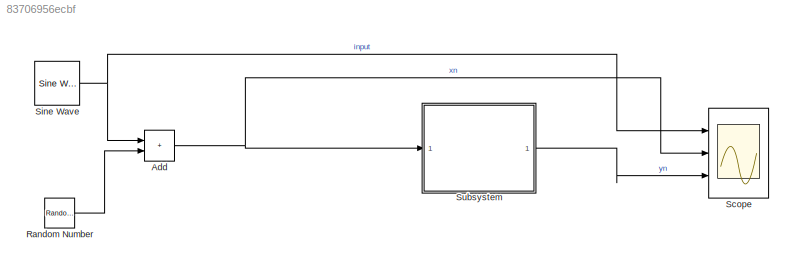
MODEL slx_83706956ecbf
KIND model
CONFIG AbsTol = auto
CONFIG EnableMultiTasking = off
CONFIG FixedStep = auto
CONFIG MaxStep = 0.001
CONFIG MinStep = auto
CONFIG RelTol = 1e-3
CONFIG SampleTimeConstraint = Unconstrained
CONFIG SolverName = VariableStepAuto
CONFIG StartTime = 0.0
CONFIG StopTime = 10.0
WORKSPACE source: mxarray member
WORKSPACE a0 = 1
WORKSPACE a1 = -0.1584
WORKSPACE b0 = 0.5792
WORKSPACE b1 = -0.5792
BLOCK [Sum] Add
  IconShape = rectangular
  Ports = [2, 1]
BLOCK [RandomNumber] Random Number
  SampleTime = 0.1
BLOCK [Scope] Scope
  Floating = off
  NumInputPorts = 3
  Ports = [3]
  ScopeSpecificationString = Simulink.scopes.TimeScopeBlockCfg('CurrentConfiguration', extmgr.ConfigurationSet(extmgr.Configuration('Core','General UI',true),extmgr.Configuration('Core','Source UI',true),extmgr.Configuration('Sources','WiredSimulink',true),extmgr.Configuration('Visuals','Time Domain',true,'SerializedDisplays',{struct('MinYLimReal','-2.08095','MaxYLimReal','2.07668','YLabelReal','','MinYLimMag','0.00000','MaxY...<+2764ch>
BLOCK [Reference] Sine Wave  REF=dspsrcs4/Sine Wave
  Ports = [0, 1]
  SourceBlock = dspsrcs4/Sine Wave
  SourceProductName = DSP System Toolbox
  SourceType = Sine Wave
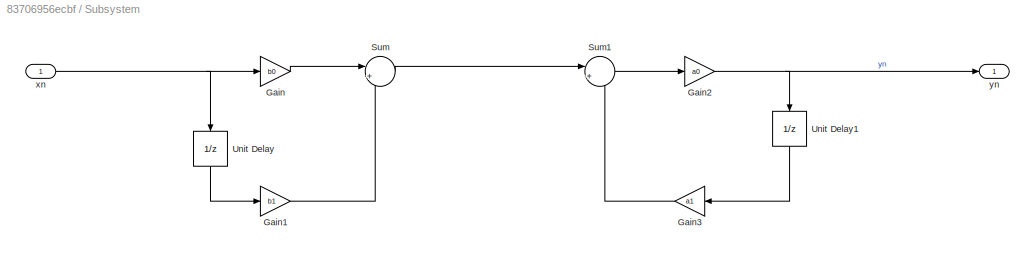
BLOCK [SubSystem] Subsystem
  Ports = [1, 1]
  RequestExecContextInheritance = off
BLOCK [Gain] Subsystem/Gain
  Gain = b0
BLOCK [Gain] Subsystem/Gain1
  Gain = b1
BLOCK [Gain] Subsystem/Gain2
  Gain = a0
BLOCK [Gain] Subsystem/Gain3
  Gain = a1
BLOCK [Sum] Subsystem/Sum
  Inputs = |++
  Ports = [2, 1]
BLOCK [Sum] Subsystem/Sum1
  Inputs = |++
  Ports = [2, 1]
BLOCK [UnitDelay] Subsystem/Unit Delay
  HasFrameUpgradeWarning = on
  NameLocation = left
  SampleTime = -1
BLOCK [UnitDelay] Subsystem/Unit Delay1
  HasFrameUpgradeWarning = on
  NameLocation = left
  SampleTime = -1
BLOCK [Inport] Subsystem/xn
BLOCK [Outport] Subsystem/yn
NET Add:1 -> Scope:2, Subsystem:1
LINE Random Number:1 -> Add:2
NET Sine Wave:1 -> Add:1, Scope:1
LINE Subsystem/Gain1:1 -> Subsystem/Sum:2
NET Subsystem/Gain2:1 -> Subsystem/Unit Delay1:1, Subsystem/yn:1
LINE Subsystem/Gain3:1 -> Subsystem/Sum1:2
LINE Subsystem/Gain:1 -> Subsystem/Sum:1
LINE Subsystem/Sum1:1 -> Subsystem/Gain2:1
LINE Subsystem/Sum:1 -> Subsystem/Sum1:1
LINE Subsystem/Unit Delay1:1 -> Subsystem/Gain3:1
LINE Subsystem/Unit Delay:1 -> Subsystem/Gain1:1
NET Subsystem/xn:1 -> Subsystem/Gain:1, Subsystem/Unit Delay:1
LINE Subsystem:1 -> Scope:3
note: NET lines group one-source signal fan-out (src -> all destinations, sorted); 1:1 wires keep LINE
